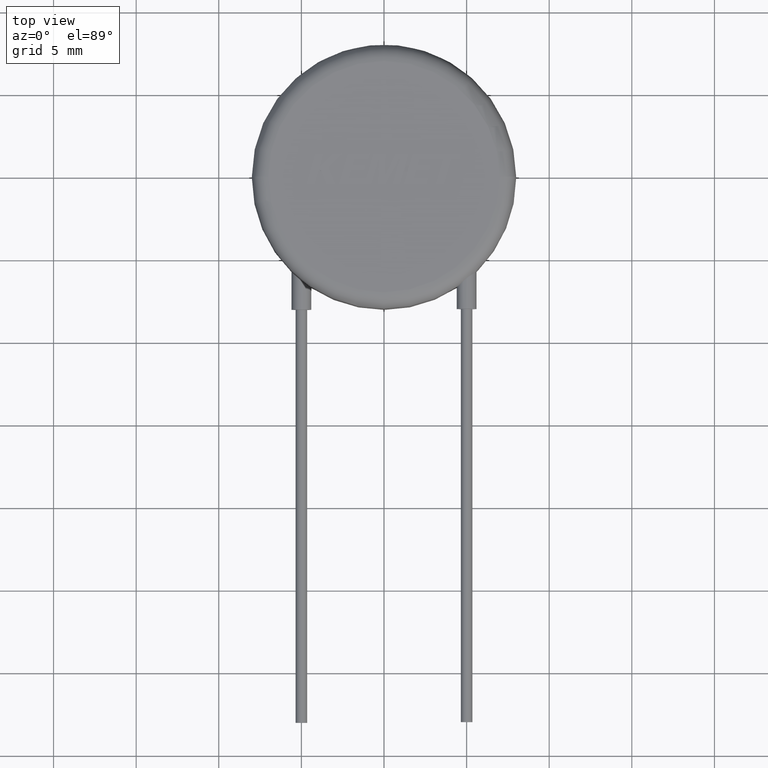
[diagram: clean part render]
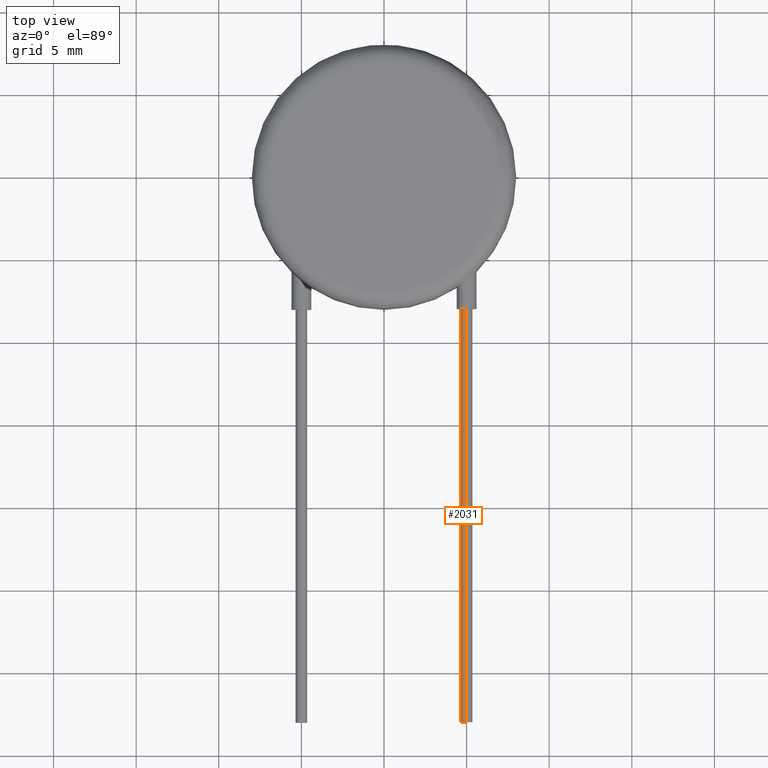
[diagram: same view with one face highlighted and labeled with its STEP entity id]
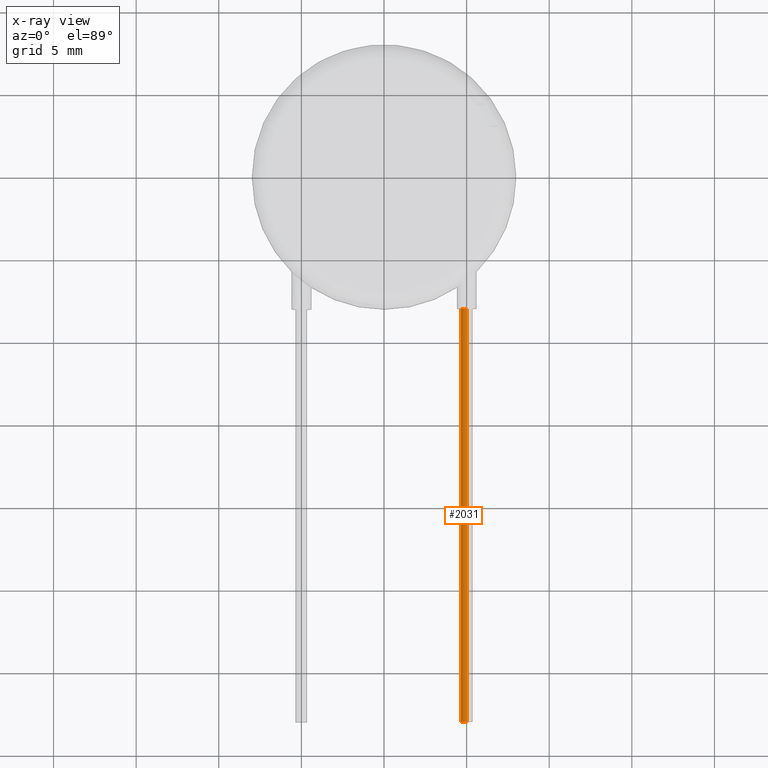
[diagram: x-ray of the same camera — body ghosted, the highlighted face saturated]
A machine part, top view. The second image highlights one B-rep face of the part: STEP entity #2031.
The next image is the same camera in x-ray: the body ghosted, the highlighted face saturated — about 0% of this face is hidden behind the body in this view.
In plain terms, the highlighted cylindrical surface (edge-blend (fillet) strip) has radius 0.35 mm, axis along (-0, 1, -0).
Its self-contained STEP definition (entity closure, byte-faithful):
#96 = DIRECTION ( 'NONE',  ( -0.000000000000000000, 1.000000000000000000, -0.000000000000000000 ) ) ;
#129 = CYLINDRICAL_SURFACE ( 'NONE', #3056, 0.3500000000000009215 ) ;
#171 = AXIS2_PLACEMENT_3D ( 'NONE', #432, #3127, #2592 ) ;
#228 = VECTOR ( 'NONE', #2156, 1000.000000000000000 ) ;
#292 = LINE ( 'NONE', #2405, #228 ) ;
#366 = CARTESIAN_POINT ( 'NONE',  ( 4.999999999999999112, -8.000000000000001776, 4.150000000000001243 ) ) ;
#432 = CARTESIAN_POINT ( 'NONE',  ( 4.999999999999999112, -33.00000000000000000, 3.799999999999999822 ) ) ;
#519 = EDGE_CURVE ( 'NONE', #2549, #2069, #292, .T. ) ;
#549 = EDGE_LOOP ( 'NONE', ( #2622, #1891, #3437, #615 ) ) ;
#567 = VERTEX_POINT ( 'NONE', #860 ) ;
#615 = ORIENTED_EDGE ( 'NONE', *, *, #3104, .F. ) ;
#745 = FACE_OUTER_BOUND ( 'NONE', #549, .T. ) ;
#860 = CARTESIAN_POINT ( 'NONE',  ( 4.999999999999999112, -8.000000000000000000, 4.150000000000001243 ) ) ;
#1183 = EDGE_CURVE ( 'NONE', #1656, #2549, #2037, .T. ) ;
#1274 = CARTESIAN_POINT ( 'NONE',  ( 4.999999999999999112, -8.000000000000000000, 3.449999999999999289 ) ) ;
#1483 = VECTOR ( 'NONE', #96, 1000.000000000000000 ) ;
#1656 = VERTEX_POINT ( 'NONE', #3067 ) ;
#1799 = CARTESIAN_POINT ( 'NONE',  ( 4.999999999999999112, -8.000000000000001776, 3.799999999999999822 ) ) ;
#1891 = ORIENTED_EDGE ( 'NONE', *, *, #1183, .F. ) ;
#2031 = ADVANCED_FACE ( 'NONE', ( #745 ), #129, .T. ) ;
#2037 = CIRCLE ( 'NONE', #171, 0.3500000000000013656 ) ;
#2069 = VERTEX_POINT ( 'NONE', #1274 ) ;
#2078 = CARTESIAN_POINT ( 'NONE',  ( 4.999999999999999112, -8.000000000000000000, 3.799999999999999822 ) ) ;
#2156 = DIRECTION ( 'NONE',  ( -0.000000000000000000, 1.000000000000000000, -0.000000000000000000 ) ) ;
#2294 = AXIS2_PLACEMENT_3D ( 'NONE', #2078, #2861, #3145 ) ;
#2405 = CARTESIAN_POINT ( 'NONE',  ( 4.999999999999999112, -8.000000000000001776, 3.449999999999999289 ) ) ;
#2549 = VERTEX_POINT ( 'NONE', #3400 ) ;
#2578 = DIRECTION ( 'NONE',  ( -0.000000000000000000, 1.000000000000000000, -0.000000000000000000 ) ) ;
#2592 = DIRECTION ( 'NONE',  ( 1.000000000000000000, 0.000000000000000000, 0.000000000000000000 ) ) ;
#2622 = ORIENTED_EDGE ( 'NONE', *, *, #519, .F. ) ;
#2804 = CIRCLE ( 'NONE', #2294, 0.3500000000000009215 ) ;
#2861 = DIRECTION ( 'NONE',  ( 0.000000000000000000, 1.000000000000000000, 0.000000000000000000 ) ) ;
#3056 = AXIS2_PLACEMENT_3D ( 'NONE', #1799, #2578, #3373 ) ;
#3067 = CARTESIAN_POINT ( 'NONE',  ( 4.999999999999999112, -33.00000000000000000, 4.150000000000001243 ) ) ;
#3104 = EDGE_CURVE ( 'NONE', #2069, #567, #2804, .T. ) ;
#3127 = DIRECTION ( 'NONE',  ( 1.665334536937734811E-16, -1.000000000000000000, 0.000000000000000000 ) ) ;
#3145 = DIRECTION ( 'NONE',  ( 0.000000000000000000, 0.000000000000000000, 1.000000000000000000 ) ) ;
#3323 = LINE ( 'NONE', #366, #1483 ) ;
#3343 = EDGE_CURVE ( 'NONE', #1656, #567, #3323, .T. ) ;
#3373 = DIRECTION ( 'NONE',  ( 0.000000000000000000, 0.000000000000000000, 1.000000000000000000 ) ) ;
#3400 = CARTESIAN_POINT ( 'NONE',  ( 4.999999999999999112, -33.00000000000000000, 3.449999999999999289 ) ) ;
#3437 = ORIENTED_EDGE ( 'NONE', *, *, #3343, .T. ) ;